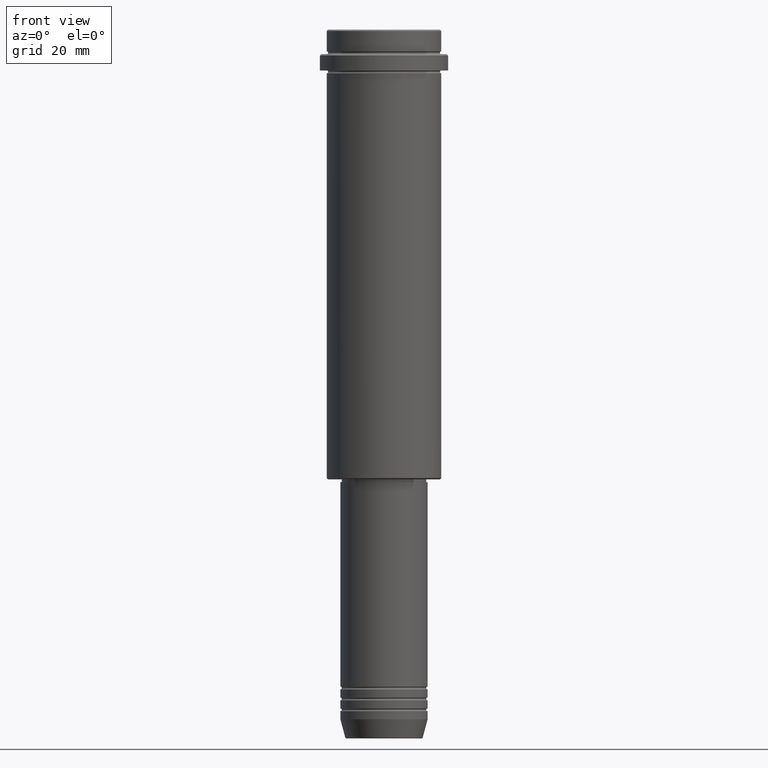
[diagram: clean part render]
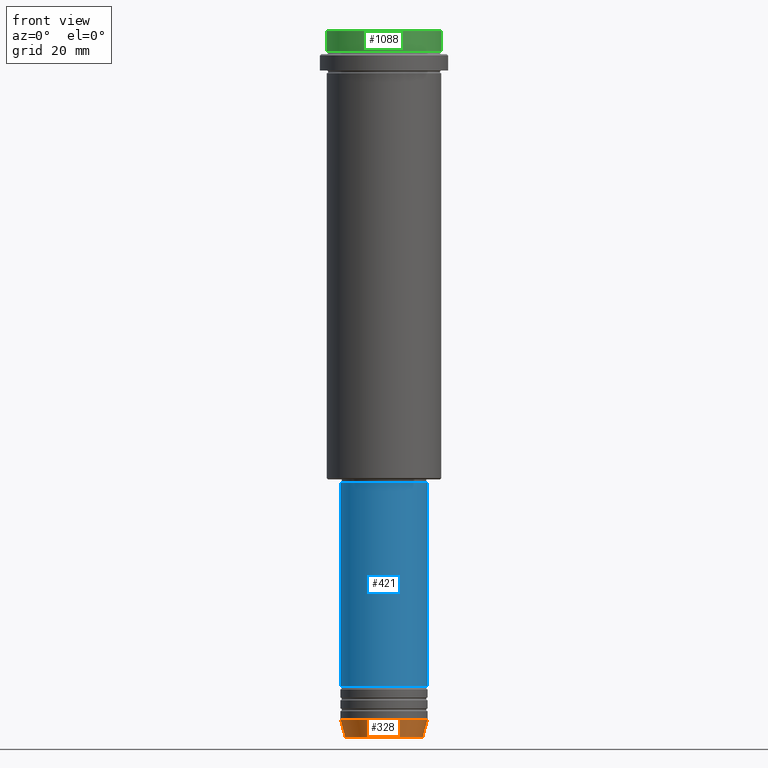
[diagram: same view with three faces highlighted in distinct colors, each labeled with its STEP entity id]
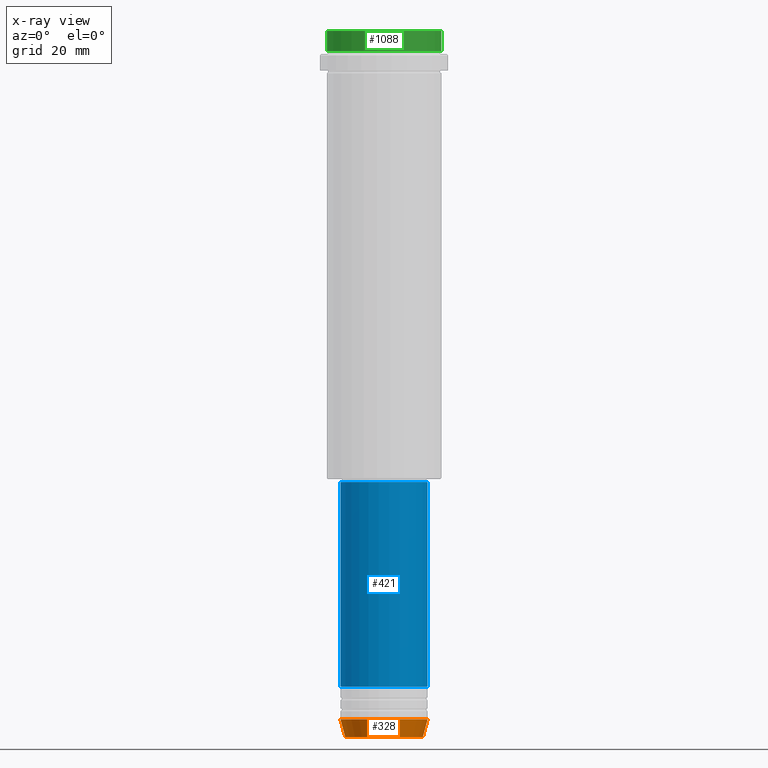
[diagram: x-ray of the same camera — body ghosted, the three highlighted faces saturated]
A machine part, front view with three faces highlighted in distinct colors.
The next image is the same camera in x-ray (body ghosted, the three faces saturated) — at least one of them is partly hidden behind the body in this view.
Their STEP definitions:

[orange] entity #328 — the highlighted conical surface has half-angle 15 deg.
#2 = CARTESIAN_POINT ( 'NONE',  ( -16.00000000000000000, 1.959434878635765131E-15, -253.0000000000000000 ) ) ;
#11 = CIRCLE ( 'NONE', #1405, 16.00000000000000000 ) ;
#33 = VERTEX_POINT ( 'NONE', #369 ) ;
#36 = VECTOR ( 'NONE', #989, 1000.000000000000000 ) ;
#39 = VECTOR ( 'NONE', #1415, 1000.000000000000000 ) ;
#45 = DIRECTION ( 'NONE',  ( 1.000000000000000000, 0.000000000000000000, 0.000000000000000000 ) ) ;
#47 = EDGE_CURVE ( 'NONE', #580, #33, #686, .T. ) ;
#172 = ORIENTED_EDGE ( 'NONE', *, *, #685, .T. ) ;
#185 = EDGE_CURVE ( 'NONE', #580, #573, #555, .T. ) ;
#209 = AXIS2_PLACEMENT_3D ( 'NONE', #398, #805, #1255 ) ;
#216 = CARTESIAN_POINT ( 'NONE',  ( 16.00000000000000000, 0.000000000000000000, -253.0000000000000000 ) ) ;
#223 = CARTESIAN_POINT ( 'NONE',  ( 16.00000000000000000, 0.000000000000000000, -253.0000000000000000 ) ) ;
#286 = ORIENTED_EDGE ( 'NONE', *, *, #47, .T. ) ;
#327 = CARTESIAN_POINT ( 'NONE',  ( -14.22365507213718772, 1.850665122131323337E-15, -259.6294095225512706 ) ) ;
#328 = ADVANCED_FACE ( 'NONE', ( #701 ), #1038, .T. ) ;
#336 = DIRECTION ( 'NONE',  ( 1.000000000000000000, 0.000000000000000000, 0.000000000000000000 ) ) ;
#369 = CARTESIAN_POINT ( 'NONE',  ( 14.22365507213718772, 0.000000000000000000, -259.6294095225512706 ) ) ;
#398 = CARTESIAN_POINT ( 'NONE',  ( 0.000000000000000000, 0.000000000000000000, -259.6294095225512706 ) ) ;
#429 = CARTESIAN_POINT ( 'NONE',  ( -16.00000000000000000, 1.959434878635765131E-15, -253.0000000000000000 ) ) ;
#555 = LINE ( 'NONE', #2, #36 ) ;
#573 = VERTEX_POINT ( 'NONE', #429 ) ;
#580 = VERTEX_POINT ( 'NONE', #327 ) ;
#602 = EDGE_CURVE ( 'NONE', #573, #937, #11, .T. ) ;
#669 = EDGE_LOOP ( 'NONE', ( #1320, #286, #172, #858 ) ) ;
#685 = EDGE_CURVE ( 'NONE', #33, #937, #1212, .T. ) ;
#686 = CIRCLE ( 'NONE', #209, 14.22365507213718772 ) ;
#701 = FACE_OUTER_BOUND ( 'NONE', #669, .T. ) ;
#805 = DIRECTION ( 'NONE',  ( -0.000000000000000000, -0.000000000000000000, 1.000000000000000000 ) ) ;
#858 = ORIENTED_EDGE ( 'NONE', *, *, #602, .F. ) ;
#875 = CARTESIAN_POINT ( 'NONE',  ( 0.000000000000000000, 0.000000000000000000, -253.0000000000000000 ) ) ;
#937 = VERTEX_POINT ( 'NONE', #216 ) ;
#989 = DIRECTION ( 'NONE',  ( -0.2588190451025213501, 3.169619151431772337E-17, 0.9659258262890680902 ) ) ;
#1019 = DIRECTION ( 'NONE',  ( -0.000000000000000000, -0.000000000000000000, 1.000000000000000000 ) ) ;
#1038 = CONICAL_SURFACE ( 'NONE', #1219, 16.00000000000000000, 0.2617993877991500740 ) ;
#1116 = CARTESIAN_POINT ( 'NONE',  ( 0.000000000000000000, 0.000000000000000000, -253.0000000000000000 ) ) ;
#1212 = LINE ( 'NONE', #223, #39 ) ;
#1219 = AXIS2_PLACEMENT_3D ( 'NONE', #1116, #1019, #45 ) ;
#1255 = DIRECTION ( 'NONE',  ( 1.000000000000000000, 0.000000000000000000, 0.000000000000000000 ) ) ;
#1299 = DIRECTION ( 'NONE',  ( -0.000000000000000000, -0.000000000000000000, 1.000000000000000000 ) ) ;
#1320 = ORIENTED_EDGE ( 'NONE', *, *, #185, .F. ) ;
#1405 = AXIS2_PLACEMENT_3D ( 'NONE', #875, #1299, #336 ) ;
#1415 = DIRECTION ( 'NONE',  ( 0.2588190451025213501, 0.000000000000000000, 0.9659258262890680902 ) ) ;

[blue] entity #421 — the highlighted cylindrical surface (partial cylindrical patch) has radius 16 mm, axis along (-0, -0, 1).
#35 = CARTESIAN_POINT ( 'NONE',  ( -16.00000000000000000, 1.959434878635765131E-15, 0.000000000000000000 ) ) ;
#53 = DIRECTION ( 'NONE',  ( 1.000000000000000000, 0.000000000000000000, 0.000000000000000000 ) ) ;
#116 = CARTESIAN_POINT ( 'NONE',  ( 0.000000000000000000, 0.000000000000000000, -240.9999999999999147 ) ) ;
#124 = ORIENTED_EDGE ( 'NONE', *, *, #713, .T. ) ;
#137 = AXIS2_PLACEMENT_3D ( 'NONE', #116, #1311, #991 ) ;
#138 = LINE ( 'NONE', #593, #645 ) ;
#144 = ORIENTED_EDGE ( 'NONE', *, *, #285, .F. ) ;
#153 = CARTESIAN_POINT ( 'NONE',  ( -16.00000000000000355, 1.959434878635765526E-15, -166.0000000000000000 ) ) ;
#206 = CARTESIAN_POINT ( 'NONE',  ( 16.00000000000000355, 0.000000000000000000, -166.0000000000000000 ) ) ;
#265 = DIRECTION ( 'NONE',  ( -0.000000000000000000, -0.000000000000000000, 1.000000000000000000 ) ) ;
#285 = EDGE_CURVE ( 'NONE', #1008, #353, #321, .T. ) ;
#321 = CIRCLE ( 'NONE', #768, 16.00000000000000355 ) ;
#331 = EDGE_CURVE ( 'NONE', #906, #1008, #586, .T. ) ;
#353 = VERTEX_POINT ( 'NONE', #206 ) ;
#407 = CARTESIAN_POINT ( 'NONE',  ( 0.000000000000000000, 0.000000000000000000, 0.000000000000000000 ) ) ;
#417 = FACE_OUTER_BOUND ( 'NONE', #1349, .T. ) ;
#421 = ADVANCED_FACE ( 'NONE', ( #417 ), #1395, .T. ) ;
#483 = DIRECTION ( 'NONE',  ( -0.000000000000000000, -0.000000000000000000, 1.000000000000000000 ) ) ;
#496 = CARTESIAN_POINT ( 'NONE',  ( 0.000000000000000000, 0.000000000000000000, -166.0000000000000000 ) ) ;
#506 = VERTEX_POINT ( 'NONE', #668 ) ;
#566 = CIRCLE ( 'NONE', #137, 16.00000000000000000 ) ;
#586 = LINE ( 'NONE', #35, #1404 ) ;
#593 = CARTESIAN_POINT ( 'NONE',  ( 16.00000000000000000, 0.000000000000000000, 0.000000000000000000 ) ) ;
#645 = VECTOR ( 'NONE', #1344, 1000.000000000000000 ) ;
#668 = CARTESIAN_POINT ( 'NONE',  ( 16.00000000000000000, 0.000000000000000000, -240.9999999999999147 ) ) ;
#713 = EDGE_CURVE ( 'NONE', #906, #506, #566, .T. ) ;
#728 = CARTESIAN_POINT ( 'NONE',  ( -16.00000000000000000, 1.959434878635765131E-15, -240.9999999999999147 ) ) ;
#747 = DIRECTION ( 'NONE',  ( 1.000000000000000000, 0.000000000000000000, 0.000000000000000000 ) ) ;
#749 = ORIENTED_EDGE ( 'NONE', *, *, #775, .T. ) ;
#768 = AXIS2_PLACEMENT_3D ( 'NONE', #496, #265, #53 ) ;
#771 = AXIS2_PLACEMENT_3D ( 'NONE', #407, #1376, #747 ) ;
#775 = EDGE_CURVE ( 'NONE', #506, #353, #138, .T. ) ;
#906 = VERTEX_POINT ( 'NONE', #728 ) ;
#991 = DIRECTION ( 'NONE',  ( 1.000000000000000000, 0.000000000000000000, 0.000000000000000000 ) ) ;
#1008 = VERTEX_POINT ( 'NONE', #153 ) ;
#1311 = DIRECTION ( 'NONE',  ( -0.000000000000000000, -0.000000000000000000, 1.000000000000000000 ) ) ;
#1344 = DIRECTION ( 'NONE',  ( -0.000000000000000000, -0.000000000000000000, 1.000000000000000000 ) ) ;
#1349 = EDGE_LOOP ( 'NONE', ( #1360, #124, #749, #144 ) ) ;
#1360 = ORIENTED_EDGE ( 'NONE', *, *, #331, .F. ) ;
#1376 = DIRECTION ( 'NONE',  ( -0.000000000000000000, -0.000000000000000000, 1.000000000000000000 ) ) ;
#1395 = CYLINDRICAL_SURFACE ( 'NONE', #771, 16.00000000000000000 ) ;
#1404 = VECTOR ( 'NONE', #483, 1000.000000000000000 ) ;

[green] entity #1088 — the highlighted cylindrical surface (partial cylindrical patch) has radius 21 mm, axis along (-0, -0, 1).
#1 = DIRECTION ( 'NONE',  ( -0.000000000000000000, -0.000000000000000000, 1.000000000000000000 ) ) ;
#22 = ORIENTED_EDGE ( 'NONE', *, *, #1140, .T. ) ;
#132 = EDGE_CURVE ( 'NONE', #157, #678, #1373, .T. ) ;
#157 = VERTEX_POINT ( 'NONE', #430 ) ;
#159 = CYLINDRICAL_SURFACE ( 'NONE', #345, 20.99999999999999645 ) ;
#170 = CARTESIAN_POINT ( 'NONE',  ( -20.99999999999999645, 2.571758278209441267E-15, -7.999999999999998224 ) ) ;
#179 = ORIENTED_EDGE ( 'NONE', *, *, #610, .T. ) ;
#243 = CARTESIAN_POINT ( 'NONE',  ( 20.99999999999999645, 0.000000000000000000, -0.4999999999999241163 ) ) ;
#345 = AXIS2_PLACEMENT_3D ( 'NONE', #585, #1231, #385 ) ;
#348 = EDGE_LOOP ( 'NONE', ( #536, #22, #721, #179 ) ) ;
#364 = CIRCLE ( 'NONE', #1193, 20.99999999999999645 ) ;
#385 = DIRECTION ( 'NONE',  ( 1.000000000000000000, 0.000000000000000000, 0.000000000000000000 ) ) ;
#410 = CARTESIAN_POINT ( 'NONE',  ( 20.99999999999999645, 0.000000000000000000, 0.000000000000000000 ) ) ;
#430 = CARTESIAN_POINT ( 'NONE',  ( 20.99999999999999645, 0.000000000000000000, -7.999999999999998224 ) ) ;
#474 = CARTESIAN_POINT ( 'NONE',  ( -20.99999999999999645, 2.571758278209441267E-15, -0.4999999999999241163 ) ) ;
#495 = FACE_OUTER_BOUND ( 'NONE', #348, .T. ) ;
#536 = ORIENTED_EDGE ( 'NONE', *, *, #556, .F. ) ;
#556 = EDGE_CURVE ( 'NONE', #1004, #1069, #680, .T. ) ;
#585 = CARTESIAN_POINT ( 'NONE',  ( 0.000000000000000000, 0.000000000000000000, 0.000000000000000000 ) ) ;
#610 = EDGE_CURVE ( 'NONE', #678, #1069, #364, .T. ) ;
#616 = VECTOR ( 'NONE', #1402, 1000.000000000000000 ) ;
#652 = DIRECTION ( 'NONE',  ( 1.000000000000000000, 0.000000000000000000, 0.000000000000000000 ) ) ;
#678 = VERTEX_POINT ( 'NONE', #243 ) ;
#680 = LINE ( 'NONE', #1090, #909 ) ;
#721 = ORIENTED_EDGE ( 'NONE', *, *, #132, .T. ) ;
#767 = CARTESIAN_POINT ( 'NONE',  ( 0.000000000000000000, 0.000000000000000000, -0.4999999999999241163 ) ) ;
#777 = DIRECTION ( 'NONE',  ( 1.000000000000000000, 0.000000000000000000, 0.000000000000000000 ) ) ;
#802 = CIRCLE ( 'NONE', #890, 20.99999999999999645 ) ;
#873 = CARTESIAN_POINT ( 'NONE',  ( 0.000000000000000000, 0.000000000000000000, -7.999999999999998224 ) ) ;
#890 = AXIS2_PLACEMENT_3D ( 'NONE', #873, #1181, #777 ) ;
#909 = VECTOR ( 'NONE', #1, 1000.000000000000000 ) ;
#1004 = VERTEX_POINT ( 'NONE', #170 ) ;
#1047 = DIRECTION ( 'NONE',  ( 0.000000000000000000, 0.000000000000000000, -1.000000000000000000 ) ) ;
#1069 = VERTEX_POINT ( 'NONE', #474 ) ;
#1088 = ADVANCED_FACE ( 'NONE', ( #495 ), #159, .T. ) ;
#1090 = CARTESIAN_POINT ( 'NONE',  ( -20.99999999999999645, 2.571758278209441267E-15, 0.000000000000000000 ) ) ;
#1140 = EDGE_CURVE ( 'NONE', #1004, #157, #802, .T. ) ;
#1181 = DIRECTION ( 'NONE',  ( -0.000000000000000000, -0.000000000000000000, 1.000000000000000000 ) ) ;
#1193 = AXIS2_PLACEMENT_3D ( 'NONE', #767, #1047, #652 ) ;
#1231 = DIRECTION ( 'NONE',  ( -0.000000000000000000, -0.000000000000000000, 1.000000000000000000 ) ) ;
#1373 = LINE ( 'NONE', #410, #616 ) ;
#1402 = DIRECTION ( 'NONE',  ( -0.000000000000000000, -0.000000000000000000, 1.000000000000000000 ) ) ;